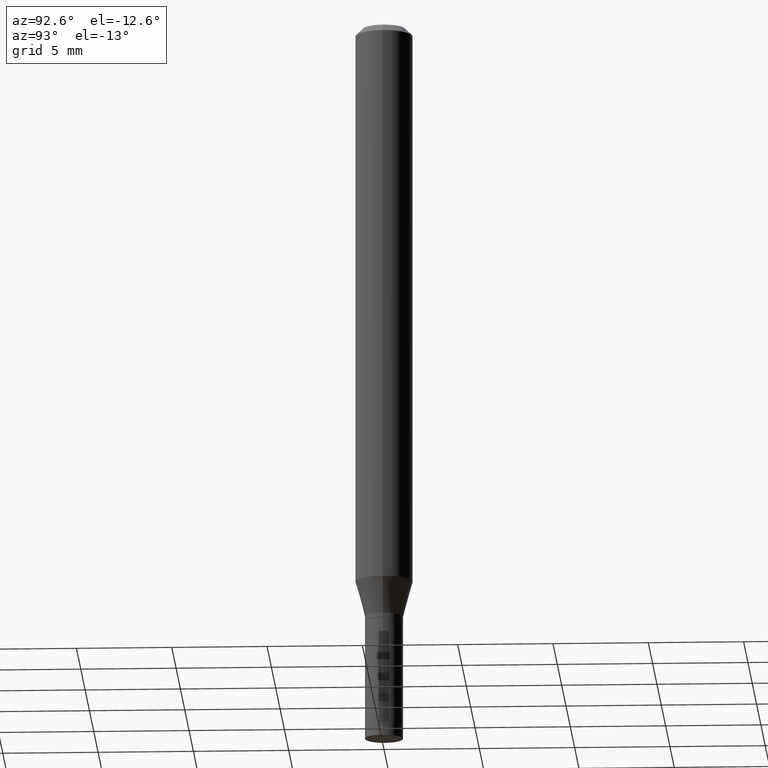
[diagram: clean part render]
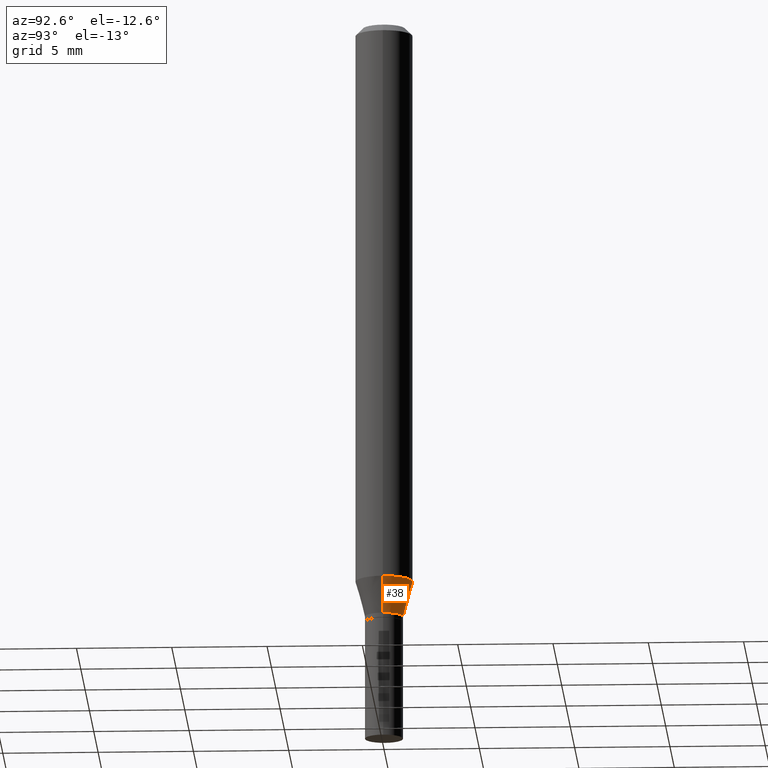
[diagram: same view with one face highlighted and labeled with its STEP entity id]
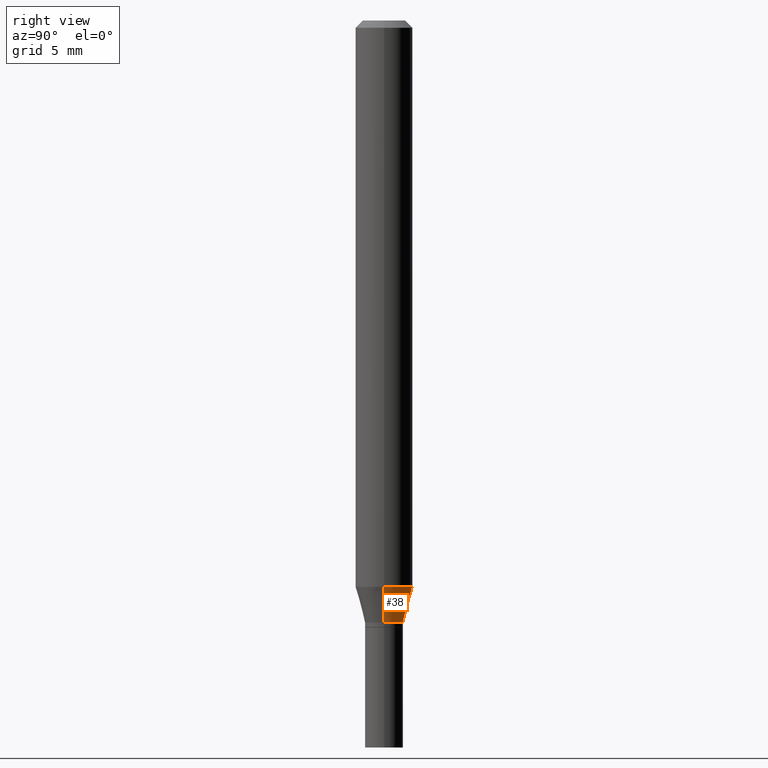
[diagram: same view with one face highlighted and labeled with its STEP entity id]
A machine part, auxiliary view. The second image highlights one B-rep face of the part: STEP entity #38.
A second angle (right view) of the same face is appended — the face is thin or edge-on in the first view.
In plain terms, the highlighted conical surface has half-angle 15 deg.
Its self-contained STEP definition (entity closure, byte-faithful):
#1 = CIRCLE ( 'NONE', #65, 0.05904999999999999832 ) ;
#29 = VERTEX_POINT ( 'NONE', #439 ) ;
#33 = LINE ( 'NONE', #185, #342 ) ;
#36 = DIRECTION ( 'NONE',  ( 1.000000000000000000, -6.982962677686269077E-15, 0.000000000000000000 ) ) ;
#38 = ADVANCED_FACE ( 'NONE', ( #277 ), #422, .T. ) ;
#40 = LINE ( 'NONE', #465, #47 ) ;
#47 = VECTOR ( 'NONE', #268, 39.37007874015748143 ) ;
#49 = CARTESIAN_POINT ( 'NONE',  ( 2.857477964771687293E-29, -4.079721223563434330E-15, -1.168478599090893244 ) ) ;
#65 = AXIS2_PLACEMENT_3D ( 'NONE', #49, #202, #186 ) ;
#73 = CARTESIAN_POINT ( 'NONE',  ( 3.037272257281939846E-29, -4.336419822843186836E-15, -1.241999999999999993 ) ) ;
#134 = AXIS2_PLACEMENT_3D ( 'NONE', #73, #417, #36 ) ;
#143 = EDGE_LOOP ( 'NONE', ( #329, #291, #204, #176 ) ) ;
#157 = EDGE_CURVE ( 'NONE', #210, #379, #1, .T. ) ;
#176 = ORIENTED_EDGE ( 'NONE', *, *, #373, .F. ) ;
#185 = CARTESIAN_POINT ( 'NONE',  ( 0.03934999999999993364, -4.611199404210140965E-15, -1.241999999999999993 ) ) ;
#186 = DIRECTION ( 'NONE',  ( 1.000000000000000000, -6.982962677686273021E-15, 0.000000000000000000 ) ) ;
#202 = DIRECTION ( 'NONE',  ( -2.445468806185136597E-29, 3.491481338843145583E-15, 1.000000000000000000 ) ) ;
#204 = ORIENTED_EDGE ( 'NONE', *, *, #157, .F. ) ;
#210 = VERTEX_POINT ( 'NONE', #404 ) ;
#245 = AXIS2_PLACEMENT_3D ( 'NONE', #407, #323, #299 ) ;
#265 = EDGE_CURVE ( 'NONE', #29, #304, #315, .T. ) ;
#268 = DIRECTION ( 'NONE',  ( -0.2588190451025215721, 5.211531920934551831E-15, 0.9659258262890679791 ) ) ;
#277 = FACE_OUTER_BOUND ( 'NONE', #143, .T. ) ;
#291 = ORIENTED_EDGE ( 'NONE', *, *, #398, .T. ) ;
#299 = DIRECTION ( 'NONE',  ( 1.000000000000000000, -6.982962677686269077E-15, 0.000000000000000000 ) ) ;
#304 = VERTEX_POINT ( 'NONE', #339 ) ;
#315 = CIRCLE ( 'NONE', #134, 0.03934999999999993364 ) ;
#323 = DIRECTION ( 'NONE',  ( -2.445468806185136597E-29, 3.491481338843145583E-15, 1.000000000000000000 ) ) ;
#329 = ORIENTED_EDGE ( 'NONE', *, *, #265, .T. ) ;
#336 = DIRECTION ( 'NONE',  ( 0.2588190451025215721, 1.565188264969619995E-15, 0.9659258262890679791 ) ) ;
#338 = CARTESIAN_POINT ( 'NONE',  ( -0.05904999999999999832, -3.660145738097095626E-15, -1.168478599090893244 ) ) ;
#339 = CARTESIAN_POINT ( 'NONE',  ( -0.03934999999999993364, -3.858483497209341928E-15, -1.241999999999999993 ) ) ;
#342 = VECTOR ( 'NONE', #336, 39.37007874015748143 ) ;
#373 = EDGE_CURVE ( 'NONE', #29, #210, #33, .T. ) ;
#379 = VERTEX_POINT ( 'NONE', #338 ) ;
#398 = EDGE_CURVE ( 'NONE', #304, #379, #40, .T. ) ;
#404 = CARTESIAN_POINT ( 'NONE',  ( 0.05904999999999999832, -4.492065169680809250E-15, -1.168478599090893244 ) ) ;
#407 = CARTESIAN_POINT ( 'NONE',  ( 3.037272257281939846E-29, -4.336419822843186836E-15, -1.241999999999999993 ) ) ;
#417 = DIRECTION ( 'NONE',  ( -2.445468806185136597E-29, 3.491481338843145583E-15, 1.000000000000000000 ) ) ;
#422 = CONICAL_SURFACE ( 'NONE', #245, 0.03934999999999993364, 0.2617993877991502960 ) ;
#439 = CARTESIAN_POINT ( 'NONE',  ( 0.03934999999999993364, -4.611199404210140965E-15, -1.241999999999999993 ) ) ;
#465 = CARTESIAN_POINT ( 'NONE',  ( -0.03934999999999993364, -4.056821256321588230E-15, -1.241999999999999993 ) ) ;